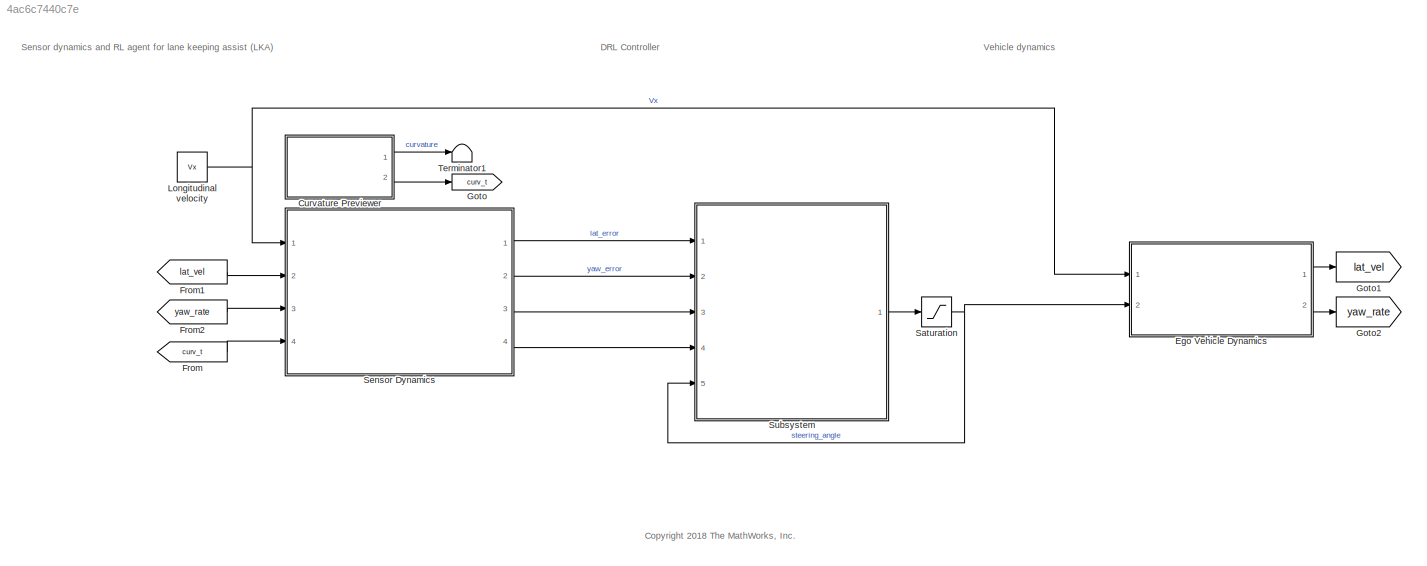
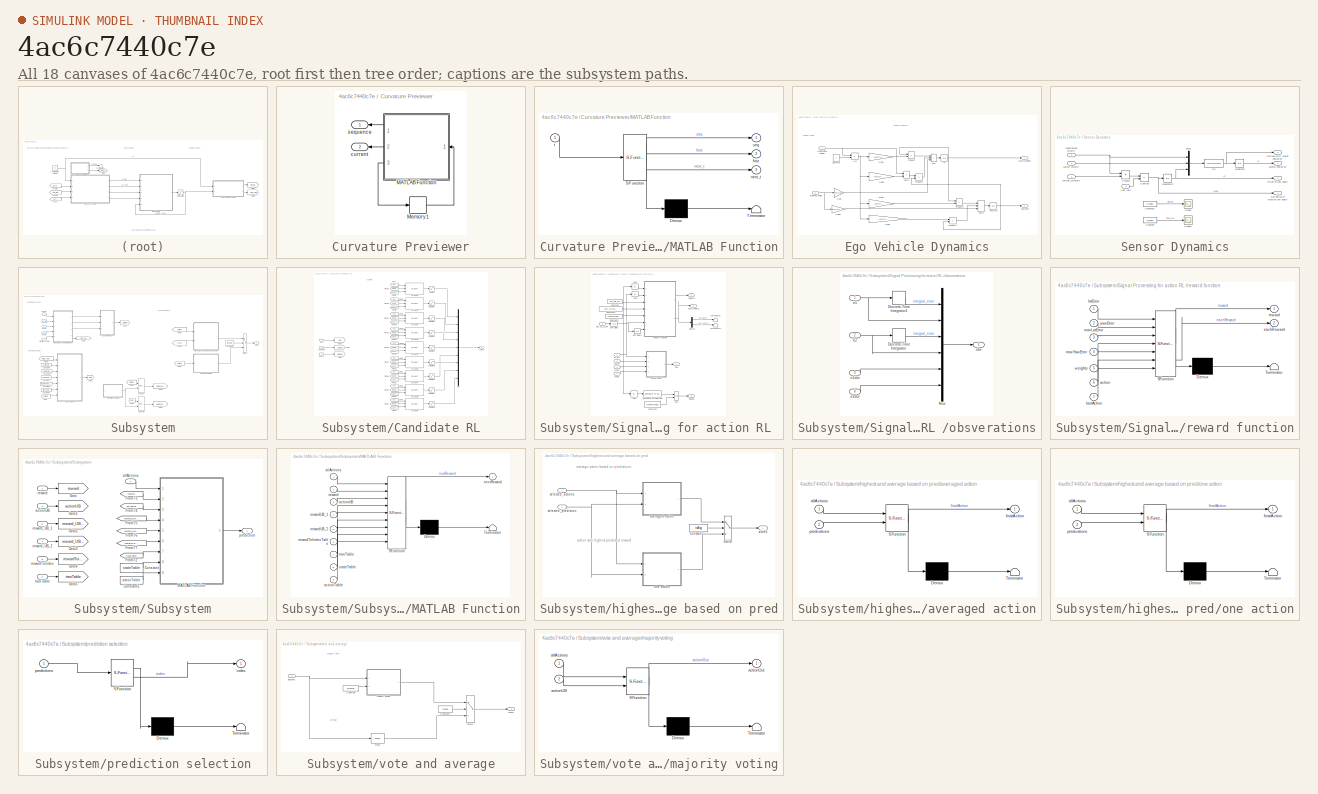
[diagram: thumbnail index - all 18 canvases of the model, root first then tree order]
MODEL slx_4ac6c7440c7e
KIND model
CONFIG AbsTol = auto
CONFIG EnableMultiTasking = off
CONFIG FixedStep = Ts
CONFIG MaxStep = auto
CONFIG MinStep = auto
CONFIG RelTol = 1e-3
CONFIG SampleTimeConstraint = Unconstrained
CONFIG SolverName = FixedStepAuto
CONFIG StartTime = 0.0
CONFIG StopTime = T
BLOCK [SubSystem] Curvature Previewer
  Ports = [0, 2]
  RequestExecContextInheritance = off
BLOCK [SubSystem] Curvature Previewer/MATLAB Function
  ErrorFcn = Stateflow.Translate.translate
  PermitHierarchicalResolution = ExplicitOnly
  Ports = [1, 3]
  RequestExecContextInheritance = off
  SFBlockType = MATLAB Function
  TreatAsAtomicUnit = on
BLOCK [Demux] Curvature Previewer/MATLAB Function/ Demux 
  Outputs = 1
  Ports = [1, 1]
BLOCK [S-Function] Curvature Previewer/MATLAB Function/ SFunction 
  EnableBusSupport = on
  FunctionName = sf_sfun
  Parameters = data,steps
  PortCounts = [1 4]
  Ports = [1, 4]
  SFcnIsStateOwnerBlock = off
  SFunctionDeploymentMode = off
  Tag = Stateflow S-Function 2
BLOCK [Terminator] Curvature Previewer/MATLAB Function/ Terminator 
BLOCK [Outport] Curvature Previewer/MATLAB Function/first
  Port = 2
  VectorParamsAs1DForOutWhenUnconnected = off
BLOCK [Outport] Curvature Previewer/MATLAB Function/next_t
  Port = 3
  VectorParamsAs1DForOutWhenUnconnected = off
BLOCK [Outport] Curvature Previewer/MATLAB Function/seq
  VectorParamsAs1DForOutWhenUnconnected = off
BLOCK [Inport] Curvature Previewer/MATLAB Function/t
BLOCK [Memory] Curvature Previewer/Memory1
  InheritSampleTime = on
  LinearizeAsDelay = on
BLOCK [Outport] Curvature Previewer/current
  Port = 2
  VectorParamsAs1DForOutWhenUnconnected = off
BLOCK [Outport] Curvature Previewer/sequence
  VectorParamsAs1DForOutWhenUnconnected = off
BLOCK [SubSystem] Ego Vehicle Dynamics
  Ports = [2, 2]
  RequestExecContextInheritance = off
BLOCK [Product] Ego Vehicle Dynamics/1//Vx
  Inputs = /*
  Ports = [2, 1]
BLOCK [Constant] Ego Vehicle Dynamics/Constant
BLOCK [Gain] Ego Vehicle Dynamics/Gain
  Gain = 2*Cf/m
BLOCK [Gain] Ego Vehicle Dynamics/Gain1
  Gain = -(2*Cf+2*Cr)/m
BLOCK [Gain] Ego Vehicle Dynamics/Gain2
  Gain = -(2*Cf*lf-2*Cr*lr)/m
BLOCK [Gain] Ego Vehicle Dynamics/Gain3
  Gain = -(2*Cf*lf-2*Cr*lr)/Iz
BLOCK [Gain] Ego Vehicle Dynamics/Gain4
  Gain = -(2*Cf*lf^2+2*Cr*lr^2)/Iz
BLOCK [Gain] Ego Vehicle Dynamics/Gain5
  Gain = 2*Cf*lf/Iz
BLOCK [Outport] Ego Vehicle Dynamics/Lateral Velocity
  VectorParamsAs1DForOutWhenUnconnected = off
BLOCK [Inport] Ego Vehicle Dynamics/Longitudinal velocity
BLOCK [Product] Ego Vehicle Dynamics/Product
  Ports = [2, 1]
BLOCK [Product] Ego Vehicle Dynamics/Product1
  Ports = [2, 1]
BLOCK [Product] Ego Vehicle Dynamics/Product2
  Ports = [2, 1]
BLOCK [Product] Ego Vehicle Dynamics/Product3
  Ports = [2, 1]
BLOCK [Inport] Ego Vehicle Dynamics/Steering angle
  Port = 2
BLOCK [Sum] Ego Vehicle Dynamics/Sum
  IconShape = rectangular
  Inputs = +++
  Ports = [3, 1]
BLOCK [Sum] Ego Vehicle Dynamics/Sum1
  IconShape = rectangular
  Inputs = -+
  Ports = [2, 1]
BLOCK [Sum] Ego Vehicle Dynamics/Sum2
  IconShape = rectangular
  Inputs = +++
  Ports = [3, 1]
BLOCK [Integrator] Ego Vehicle Dynamics/Vy
  Ports = [1, 1]
BLOCK [Outport] Ego Vehicle Dynamics/Yaw Rate
  Port = 2
  VectorParamsAs1DForOutWhenUnconnected = off
BLOCK [Integrator] Ego Vehicle Dynamics/Yaw_rate 
  Ports = [1, 1]
BLOCK [From] From
  GotoTag = curv_t
BLOCK [From] From1
  GotoTag = lat_vel
BLOCK [From] From2
  GotoTag = yaw_rate
BLOCK [Goto] Goto
  GotoTag = curv_t
BLOCK [Goto] Goto1
  GotoTag = lat_vel
BLOCK [Goto] Goto2
  GotoTag = yaw_rate
BLOCK [Constant] Longitudinal velocity
  SampleTime = Ts
  Value = Vx
BLOCK [Saturate] Saturation
  LowerLimit = u_min
  UpperLimit = u_max
BLOCK [SubSystem] Sensor Dynamics
  Ports = [4, 4]
  RequestExecContextInheritance = off
BLOCK [Constant] Sensor Dynamics/Constant
  Commented = on
  Value = e2_initial
BLOCK [Constant] Sensor Dynamics/Constant1
  Commented = on
  Value = e1_initial
BLOCK [Outport] Sensor Dynamics/Derivative of lateral deviation
  Port = 3
  VectorParamsAs1DForOutWhenUnconnected = off
BLOCK [Outport] Sensor Dynamics/Derivative of relative yaw angle
  Port = 4
  VectorParamsAs1DForOutWhenUnconnected = off
BLOCK [Integrator] Sensor Dynamics/Integrator
  InitialCondition = e1_initial
  Ports = [1, 1]
BLOCK [Integrator] Sensor Dynamics/Integrator2
  InitialCondition = e2_initial
  Ports = [1, 1]
BLOCK [Outport] Sensor Dynamics/Lateral deviation
  VectorParamsAs1DForOutWhenUnconnected = off
BLOCK [Inport] Sensor Dynamics/Lateral velocity
  Port = 2
BLOCK [Inport] Sensor Dynamics/Longitudinal velocity
BLOCK [Mux] Sensor Dynamics/Mux1
  DisplayOption = bar
  Inputs = [1 1 1]
  Ports = [3, 1]
BLOCK [Product] Sensor Dynamics/Product
  Ports = [2, 1]
BLOCK [Outport] Sensor Dynamics/Relative yaw angle
  Port = 2
  VectorParamsAs1DForOutWhenUnconnected = off
BLOCK [Scope] Sensor Dynamics/Scope
  Commented = on
  Floating = off
  NumInputPorts = 1
  Ports = [1]
  ScopeSpecificationString = Simulink.scopes.TimeScopeBlockCfg('CurrentConfiguration', extmgr.ConfigurationSet(extmgr.Configuration('Core','General UI',true),extmgr.Configuration('Core','Source UI',true),extmgr.Configuration('Sources','WiredSimulink',true),extmgr.Configuration('Visuals','Time Domain',true),extmgr.Configuration('Tools','Plot Navigation',true),extmgr.Configuration('Tools','Measurements',true)),'Version','2021a'...<+1ch>
BLOCK [Scope] Sensor Dynamics/Scope1
  Commented = on
  Floating = off
  NumInputPorts = 1
  Ports = [1]
  ScopeSpecificationString = Simulink.scopes.TimeScopeBlockCfg('CurrentConfiguration', extmgr.ConfigurationSet(extmgr.Configuration('Core','General UI',true),extmgr.Configuration('Core','Source UI',true),extmgr.Configuration('Sources','WiredSimulink',true,'DataLoggingVariableName','ScopeData1'),extmgr.Configuration('Visuals','Time Domain',true),extmgr.Configuration('Tools','Plot Navigation',true),extmgr.Configuration('Tools',...<+40ch>
BLOCK [Sum] Sensor Dynamics/Subtract
  IconShape = rectangular
  Inputs = -+
  Ports = [2, 1]
BLOCK [Inport] Sensor Dynamics/Yaw rate
  Port = 3
BLOCK [Inport] Sensor Dynamics/current_curvature
  Port = 4
BLOCK [Fcn] Sensor Dynamics/fcn
  Expr = u(1)*u(3)+u(2)
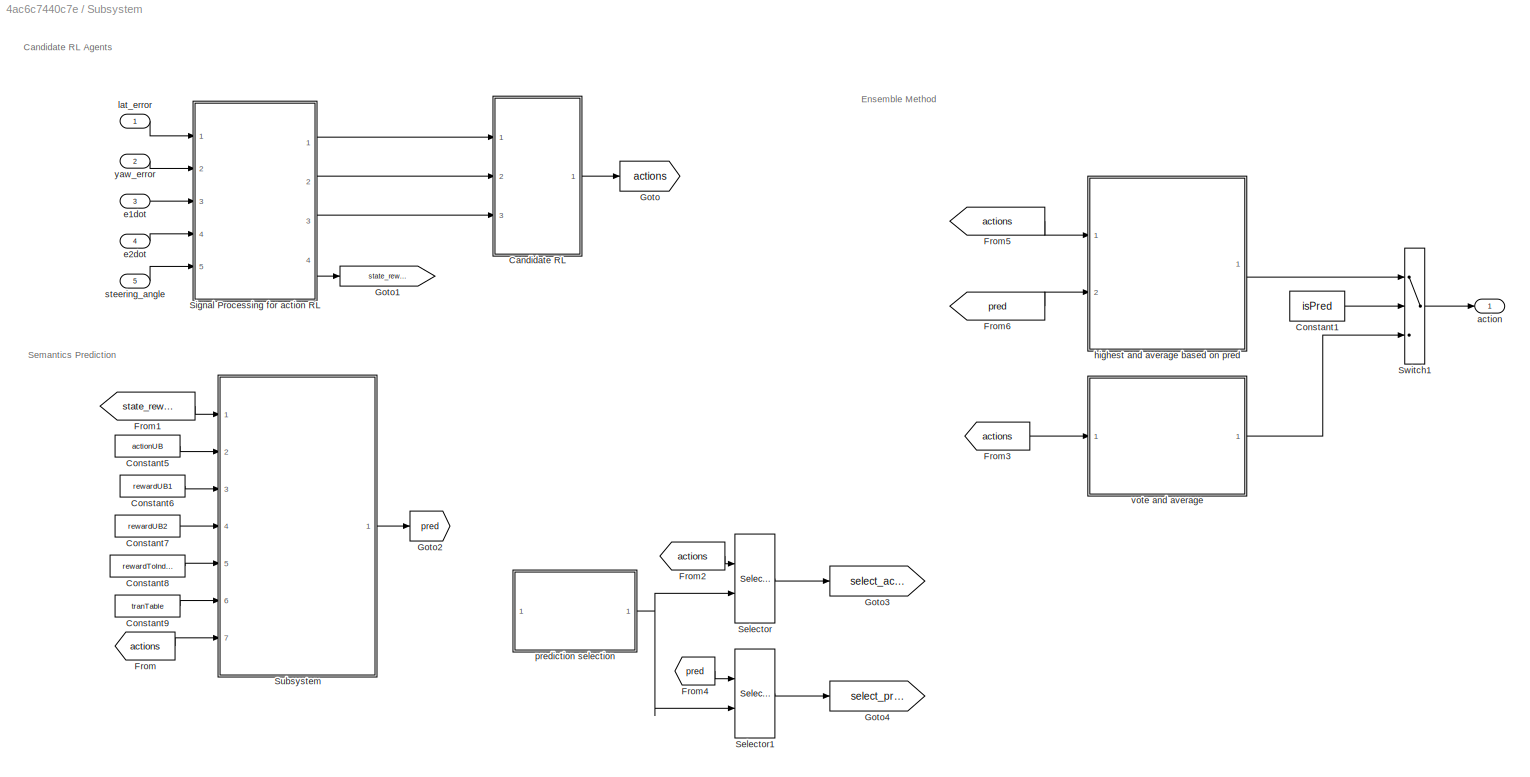
BLOCK [SubSystem] Subsystem
  Ports = [5, 1]
  RequestExecContextInheritance = off
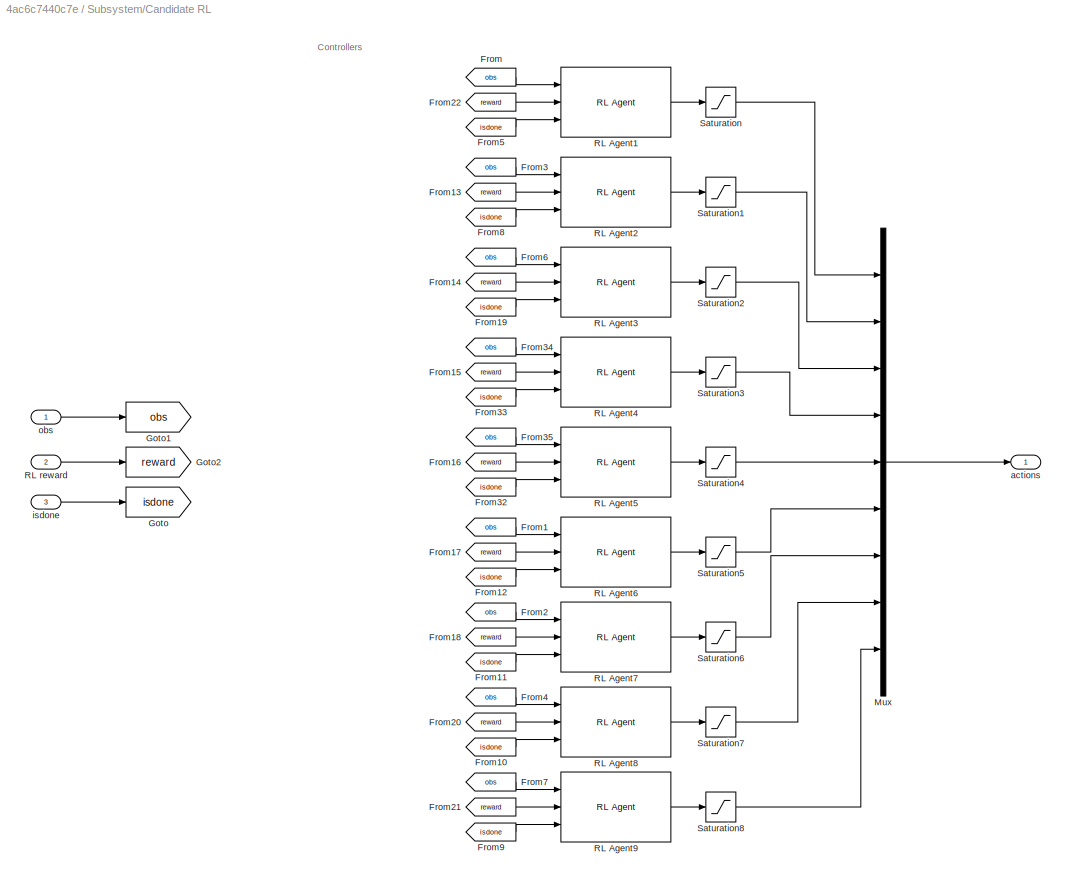
BLOCK [SubSystem] Subsystem/Candidate RL
  Ports = [3, 1]
  RequestExecContextInheritance = off
BLOCK [From] Subsystem/Candidate RL/From
  GotoTag = obs
BLOCK [From] Subsystem/Candidate RL/From1
  GotoTag = obs
BLOCK [From] Subsystem/Candidate RL/From10
  GotoTag = isdone
BLOCK [From] Subsystem/Candidate RL/From11
  GotoTag = isdone
BLOCK [From] Subsystem/Candidate RL/From12
  GotoTag = isdone
BLOCK [From] Subsystem/Candidate RL/From13
  GotoTag = reward
BLOCK [From] Subsystem/Candidate RL/From14
  GotoTag = reward
BLOCK [From] Subsystem/Candidate RL/From15
  GotoTag = reward
BLOCK [From] Subsystem/Candidate RL/From16
  GotoTag = reward
BLOCK [From] Subsystem/Candidate RL/From17
  GotoTag = reward
BLOCK [From] Subsystem/Candidate RL/From18
  GotoTag = reward
BLOCK [From] Subsystem/Candidate RL/From19
  GotoTag = isdone
BLOCK [From] Subsystem/Candidate RL/From2
  GotoTag = obs
BLOCK [From] Subsystem/Candidate RL/From20
  GotoTag = reward
BLOCK [From] Subsystem/Candidate RL/From21
  GotoTag = reward
BLOCK [From] Subsystem/Candidate RL/From22
  GotoTag = reward
BLOCK [From] Subsystem/Candidate RL/From3
  GotoTag = obs
BLOCK [From] Subsystem/Candidate RL/From32
  GotoTag = isdone
BLOCK [From] Subsystem/Candidate RL/From33
  GotoTag = isdone
BLOCK [From] Subsystem/Candidate RL/From34
  GotoTag = obs
BLOCK [From] Subsystem/Candidate RL/From35
  GotoTag = obs
BLOCK [From] Subsystem/Candidate RL/From4
  GotoTag = obs
BLOCK [From] Subsystem/Candidate RL/From5
  GotoTag = isdone
BLOCK [From] Subsystem/Candidate RL/From6
  GotoTag = obs
BLOCK [From] Subsystem/Candidate RL/From7
  GotoTag = obs
BLOCK [From] Subsystem/Candidate RL/From8
  GotoTag = isdone
BLOCK [From] Subsystem/Candidate RL/From9
  GotoTag = isdone
BLOCK [Goto] Subsystem/Candidate RL/Goto
  GotoTag = isdone
BLOCK [Goto] Subsystem/Candidate RL/Goto1
  GotoTag = obs
BLOCK [Goto] Subsystem/Candidate RL/Goto2
  GotoTag = reward
BLOCK [Mux] Subsystem/Candidate RL/Mux
  DisplayOption = bar
  Inputs = 9
  Ports = [9, 1]
BLOCK [Reference] Subsystem/Candidate RL/RL Agent1  REF=rllib/RL Agent
  Ports = [3, 1]
  SourceBlock = rllib/RL Agent
  SourceProductBaseCode = RL
  SourceType = RL Agent
BLOCK [Reference] Subsystem/Candidate RL/RL Agent2  REF=rllib/RL Agent
  Ports = [3, 1]
  SourceBlock = rllib/RL Agent
  SourceProductBaseCode = RL
  SourceType = RL Agent
BLOCK [Reference] Subsystem/Candidate RL/RL Agent3  REF=rllib/RL Agent
  Ports = [3, 1]
  SourceBlock = rllib/RL Agent
  SourceProductBaseCode = RL
  SourceType = RL Agent
BLOCK [Reference] Subsystem/Candidate RL/RL Agent4  REF=rllib/RL Agent
  Ports = [3, 1]
  SourceBlock = rllib/RL Agent
  SourceProductBaseCode = RL
  SourceType = RL Agent
BLOCK [Reference] Subsystem/Candidate RL/RL Agent5  REF=rllib/RL Agent
  Ports = [3, 1]
  SourceBlock = rllib/RL Agent
  SourceProductBaseCode = RL
  SourceType = RL Agent
BLOCK [Reference] Subsystem/Candidate RL/RL Agent6  REF=rllib/RL Agent
  Ports = [3, 1]
  SourceBlock = rllib/RL Agent
  SourceProductBaseCode = RL
  SourceType = RL Agent
BLOCK [Reference] Subsystem/Candidate RL/RL Agent7  REF=rllib/RL Agent
  Ports = [3, 1]
  SourceBlock = rllib/RL Agent
  SourceProductBaseCode = RL
  SourceType = RL Agent
BLOCK [Reference] Subsystem/Candidate RL/RL Agent8  REF=rllib/RL Agent
  Ports = [3, 1]
  SourceBlock = rllib/RL Agent
  SourceProductBaseCode = RL
  SourceType = RL Agent
BLOCK [Reference] Subsystem/Candidate RL/RL Agent9  REF=rllib/RL Agent
  Ports = [3, 1]
  SourceBlock = rllib/RL Agent
  SourceProductBaseCode = RL
  SourceType = RL Agent
BLOCK [Inport] Subsystem/Candidate RL/RL reward
  Port = 2
BLOCK [Saturate] Subsystem/Candidate RL/Saturation
  LowerLimit = u_min
  UpperLimit = u_max
BLOCK [Saturate] Subsystem/Candidate RL/Saturation1
  LowerLimit = u_min
  UpperLimit = u_max
BLOCK [Saturate] Subsystem/Candidate RL/Saturation2
  LowerLimit = u_min
  UpperLimit = u_max
BLOCK [Saturate] Subsystem/Candidate RL/Saturation3
  LowerLimit = u_min
  UpperLimit = u_max
BLOCK [Saturate] Subsystem/Candidate RL/Saturation4
  LowerLimit = u_min
  UpperLimit = u_max
BLOCK [Saturate] Subsystem/Candidate RL/Saturation5
  LowerLimit = u_min
  UpperLimit = u_max
BLOCK [Saturate] Subsystem/Candidate RL/Saturation6
  LowerLimit = u_min
  UpperLimit = u_max
BLOCK [Saturate] Subsystem/Candidate RL/Saturation7
  LowerLimit = u_min
  UpperLimit = u_max
BLOCK [Saturate] Subsystem/Candidate RL/Saturation8
  LowerLimit = u_min
  UpperLimit = u_max
BLOCK [Outport] Subsystem/Candidate RL/actions
BLOCK [Inport] Subsystem/Candidate RL/isdone
  Port = 3
BLOCK [Inport] Subsystem/Candidate RL/obs
BLOCK [Constant] Subsystem/Constant1
  Value = isPred
BLOCK [Constant] Subsystem/Constant5
  Value = actionUB
BLOCK [Constant] Subsystem/Constant6
  Value = rewardUB1
BLOCK [Constant] Subsystem/Constant7
  Value = rewardUB2
BLOCK [Constant] Subsystem/Constant8
  Value = rewardToIndex
BLOCK [Constant] Subsystem/Constant9
  Value = tranTable
BLOCK [From] Subsystem/From
  GotoTag = actions
BLOCK [From] Subsystem/From1
  GotoTag = state_reward
BLOCK [From] Subsystem/From2
  Commented = on
  GotoTag = actions
BLOCK [From] Subsystem/From3
  GotoTag = actions
BLOCK [From] Subsystem/From4
  Commented = on
  GotoTag = pred
BLOCK [From] Subsystem/From5
  GotoTag = actions
BLOCK [From] Subsystem/From6
  GotoTag = pred
BLOCK [Goto] Subsystem/Goto
  GotoTag = actions
BLOCK [Goto] Subsystem/Goto1
  GotoTag = state_reward
BLOCK [Goto] Subsystem/Goto2
  GotoTag = pred
BLOCK [Goto] Subsystem/Goto3
  Commented = on
  GotoTag = select_action
BLOCK [Goto] Subsystem/Goto4
  Commented = on
  GotoTag = select_pred
BLOCK [Selector] Subsystem/Selector
  Commented = on
  IndexOptions = Index vector (port)
  Indices = [1 3]
  InputPortWidth = 3
  OutputSizes = 1
  Ports = [2, 1]
BLOCK [Selector] Subsystem/Selector1
  Commented = on
  IndexOptions = Index vector (port)
  Indices = [1 3]
  InputPortWidth = 3
  OutputSizes = 1
  Ports = [2, 1]
BLOCK [SubSystem] Subsystem/Signal Processing for action RL 
  Ports = [5, 4]
  RequestExecContextInheritance = off
BLOCK [Logic] Subsystem/Signal Processing for action RL /AND
  AllPortsSameDT = off
  IconShape = distinctive
  OutDataTypeStr = boolean
  Ports = [2, 1]
BLOCK [Abs] Subsystem/Signal Processing for action RL /Abs
  SaturateOnIntegerOverflow = off
BLOCK [Abs] Subsystem/Signal Processing for action RL /Abs1
  SaturateOnIntegerOverflow = off
BLOCK [Abs] Subsystem/Signal Processing for action RL /Abs2
  SaturateOnIntegerOverflow = off
BLOCK [Reference] Subsystem/Signal Processing for action RL /Compare To Constant  REF=simulink/Logic and Bit
Operations/Compare
To Constant
  Ports = [1, 1]
  SourceBlock = simulink/Logic and Bit\nOperations/Compare\nTo Constant
  SourceProductBaseCode = SL
  SourceType = Compare To Constant
BLOCK [Constant] Subsystem/Signal Processing for action RL /Constant
  Value = max_late_dev
BLOCK [Constant] Subsystem/Signal Processing for action RL /Constant1
  Value = isTerminate
BLOCK [Constant] Subsystem/Signal Processing for action RL /Constant2
  Value = max_rel_yaw_ang
BLOCK [Constant] Subsystem/Signal Processing for action RL /Constant3
  Value = rewardWeights
BLOCK [Demux] Subsystem/Signal Processing for action RL /Demux
  Outputs = 2
  Ports = [1, 2]
BLOCK [Outport] Subsystem/Signal Processing for action RL /Reward
  Port = 2
  VectorParamsAs1DForOutWhenUnconnected = off
BLOCK [Terminator] Subsystem/Signal Processing for action RL /Terminator
BLOCK [Terminator] Subsystem/Signal Processing for action RL /Terminator1
BLOCK [UnitDelay] Subsystem/Signal Processing for action RL /Unit Delay
  HasFrameUpgradeWarning = on
  SampleTime = -1
BLOCK [UnitDelay] Subsystem/Signal Processing for action RL /Unit Delay1
  HasFrameUpgradeWarning = on
  SampleTime = -1
BLOCK [Inport] Subsystem/Signal Processing for action RL /e1dot 
  Port = 3
BLOCK [Inport] Subsystem/Signal Processing for action RL /e2dot
  Port = 4
BLOCK [Outport] Subsystem/Signal Processing for action RL /each_reward
  Port = 4
BLOCK [Outport] Subsystem/Signal Processing for action RL /isDone
  Port = 3
  VectorParamsAs1DForOutWhenUnconnected = off
BLOCK [Inport] Subsystem/Signal Processing for action RL /last_RL_steer
  Port = 5
BLOCK [Inport] Subsystem/Signal Processing for action RL /lat_err
BLOCK [Outport] Subsystem/Signal Processing for action RL /obs
  VectorParamsAs1DForOutWhenUnconnected = off
BLOCK [SubSystem] Subsystem/Signal Processing for action RL /obsverations
  Ports = [4, 1]
  RequestExecContextInheritance = off
BLOCK [DiscreteIntegrator] Subsystem/Signal Processing for action RL /obsverations/Discrete-Time Integrator
  ICPrevOutput = DiscIntNeverNeededParam
  ICPrevScaledInput = DiscIntNeverNeededParam
  InitialConditionSetting = Auto
  Ports = [1, 1]
  SampleTime = -1
BLOCK [DiscreteIntegrator] Subsystem/Signal Processing for action RL /obsverations/Discrete-Time Integrator1
  ICPrevOutput = DiscIntNeverNeededParam
  ICPrevScaledInput = DiscIntNeverNeededParam
  InitialConditionSetting = Auto
  Ports = [1, 1]
  SampleTime = -1
BLOCK [Mux] Subsystem/Signal Processing for action RL /obsverations/Mux
  DisplayOption = bar
  Inputs = 6
  Ports = [6, 1]
BLOCK [Inport] Subsystem/Signal Processing for action RL /obsverations/e1
BLOCK [Inport] Subsystem/Signal Processing for action RL /obsverations/e1dot
  Port = 3
BLOCK [Inport] Subsystem/Signal Processing for action RL /obsverations/e2
  Port = 2
BLOCK [Inport] Subsystem/Signal Processing for action RL /obsverations/e2dot
  Port = 4
BLOCK [Outport] Subsystem/Signal Processing for action RL /obsverations/obs
  VectorParamsAs1DForOutWhenUnconnected = off
BLOCK [SubSystem] Subsystem/Signal Processing for action RL /reward function
  ErrorFcn = Stateflow.Translate.translate
  PermitHierarchicalResolution = ExplicitOnly
  Ports = [7, 2]
  RequestExecContextInheritance = off
  SFBlockType = MATLAB Function
  TreatAsAtomicUnit = on
BLOCK [Demux] Subsystem/Signal Processing for action RL /reward function/ Demux 
  Outputs = 1
  Ports = [1, 1]
BLOCK [S-Function] Subsystem/Signal Processing for action RL /reward function/ SFunction 
  EnableBusSupport = on
  FunctionName = sf_sfun
  PortCounts = [7 3]
  Ports = [7, 3]
  SFcnIsStateOwnerBlock = off
  SFunctionDeploymentMode = off
  Tag = Stateflow S-Function 1
BLOCK [Terminator] Subsystem/Signal Processing for action RL /reward function/ Terminator 
BLOCK [Inport] Subsystem/Signal Processing for action RL /reward function/action
  Port = 6
BLOCK [Outport] Subsystem/Signal Processing for action RL /reward function/eachReward
  Port = 2
BLOCK [Inport] Subsystem/Signal Processing for action RL /reward function/lastAction
  Port = 7
BLOCK [Inport] Subsystem/Signal Processing for action RL /reward function/latError
BLOCK [Inport] Subsystem/Signal Processing for action RL /reward function/maxLatError
  Port = 3
BLOCK [Inport] Subsystem/Signal Processing for action RL /reward function/maxYawError
  Port = 4
BLOCK [Outport] Subsystem/Signal Processing for action RL /reward function/reward
BLOCK [Inport] Subsystem/Signal Processing for action RL /reward function/weights
  Port = 5
BLOCK [Inport] Subsystem/Signal Processing for action RL /reward function/yawError
  Port = 2
BLOCK [Inport] Subsystem/Signal Processing for action RL /yaw_err
  Port = 2
BLOCK [SubSystem] Subsystem/Subsystem
  Ports = [7, 1]
  RequestExecContextInheritance = off
BLOCK [Constant] Subsystem/Subsystem/Constant
  Value = stateTable
BLOCK [Constant] Subsystem/Subsystem/Constant1
  Value = actionTable
BLOCK [From] Subsystem/Subsystem/From72
  GotoTag = tranTable
BLOCK [From] Subsystem/Subsystem/From73
  GotoTag = reward
BLOCK [From] Subsystem/Subsystem/From74
  GotoTag = actionUB
BLOCK [From] Subsystem/Subsystem/From75
  GotoTag = reward_UB_1
BLOCK [From] Subsystem/Subsystem/From76
  GotoTag = reward_UB_2
BLOCK [From] Subsystem/Subsystem/From77
  GotoTag = rewardToindex
BLOCK [Goto] Subsystem/Subsystem/Goto
  GotoTag = reward
BLOCK [Goto] Subsystem/Subsystem/Goto1
  GotoTag = actionUB
BLOCK [Goto] Subsystem/Subsystem/Goto2
  GotoTag = reward_UB_1
BLOCK [Goto] Subsystem/Subsystem/Goto3
  GotoTag = reward_UB_2
BLOCK [Goto] Subsystem/Subsystem/Goto4
  GotoTag = rewardToindex
BLOCK [Goto] Subsystem/Subsystem/Goto5
  GotoTag = tranTable
BLOCK [SubSystem] Subsystem/Subsystem/MATLAB Function
  ErrorFcn = Stateflow.Translate.translate
  PermitHierarchicalResolution = ExplicitOnly
  Ports = [9, 1]
  RequestExecContextInheritance = off
  SFBlockType = MATLAB Function
  TreatAsAtomicUnit = on
BLOCK [Demux] Subsystem/Subsystem/MATLAB Function/ Demux 
  Outputs = 1
  Ports = [1, 1]
BLOCK [S-Function] Subsystem/Subsystem/MATLAB Function/ SFunction 
  EnableBusSupport = on
  FunctionName = sf_sfun
  PortCounts = [9 2]
  Ports = [9, 2]
  SFcnIsStateOwnerBlock = off
  SFunctionDeploymentMode = off
  Tag = Stateflow S-Function 3
BLOCK [Terminator] Subsystem/Subsystem/MATLAB Function/ Terminator 
BLOCK [Inport] Subsystem/Subsystem/MATLAB Function/actionTable
  Port = 9
BLOCK [Inport] Subsystem/Subsystem/MATLAB Function/actionUB
  Port = 3
BLOCK [Inport] Subsystem/Subsystem/MATLAB Function/allActions
BLOCK [Outport] Subsystem/Subsystem/MATLAB Function/nextReward
BLOCK [Inport] Subsystem/Subsystem/MATLAB Function/reward
  Port = 2
BLOCK [Inport] Subsystem/Subsystem/MATLAB Function/rewardToIndexTable
  Port = 6
BLOCK [Inport] Subsystem/Subsystem/MATLAB Function/rewardUB_1
  Port = 4
BLOCK [Inport] Subsystem/Subsystem/MATLAB Function/rewardUB_2
  Port = 5
BLOCK [Inport] Subsystem/Subsystem/MATLAB Function/stateTable
  Port = 8
BLOCK [Inport] Subsystem/Subsystem/MATLAB Function/tranTable
  Port = 7
BLOCK [Inport] Subsystem/Subsystem/actionUB
  Port = 2
BLOCK [Inport] Subsystem/Subsystem/allActions
  Port = 7
BLOCK [Outport] Subsystem/Subsystem/prediction
BLOCK [Inport] Subsystem/Subsystem/reward
BLOCK [Inport] Subsystem/Subsystem/rewardToindex
  Port = 5
BLOCK [Inport] Subsystem/Subsystem/reward_UB_1
  Port = 3
BLOCK [Inport] Subsystem/Subsystem/reward_UB_2
  Port = 4
BLOCK [Inport] Subsystem/Subsystem/tranTable
  Port = 6
BLOCK [Switch] Subsystem/Switch1
  Criteria = u2 > Threshold
  InputSameDT = off
  SaturateOnIntegerOverflow = off
BLOCK [Outport] Subsystem/action
BLOCK [Inport] Subsystem/e1dot 
  Port = 3
BLOCK [Inport] Subsystem/e2dot
  Port = 4
BLOCK [SubSystem] Subsystem/highest and average based on pred
  Ports = [2, 1]
  RequestExecContextInheritance = off
BLOCK [Constant] Subsystem/highest and average based on pred/Constant
  Value = isAvg
BLOCK [Switch] Subsystem/highest and average based on pred/Switch
  Criteria = u2 > Threshold
  InputSameDT = off
  SaturateOnIntegerOverflow = off
BLOCK [Outport] Subsystem/highest and average based on pred/action
BLOCK [SubSystem] Subsystem/highest and average based on pred/averaged action
  ErrorFcn = Stateflow.Translate.translate
  PermitHierarchicalResolution = ExplicitOnly
  Ports = [2, 1]
  RequestExecContextInheritance = off
  SFBlockType = MATLAB Function
  TreatAsAtomicUnit = on
BLOCK [Demux] Subsystem/highest and average based on pred/averaged action/ Demux 
  Outputs = 1
  Ports = [1, 1]
BLOCK [S-Function] Subsystem/highest and average based on pred/averaged action/ SFunction 
  EnableBusSupport = on
  FunctionName = sf_sfun
  PortCounts = [2 2]
  Ports = [2, 2]
  SFcnIsStateOwnerBlock = off
  SFunctionDeploymentMode = off
  Tag = Stateflow S-Function 14
BLOCK [Terminator] Subsystem/highest and average based on pred/averaged action/ Terminator 
BLOCK [Inport] Subsystem/highest and average based on pred/averaged action/allActions
BLOCK [Outport] Subsystem/highest and average based on pred/averaged action/finalAction
BLOCK [Inport] Subsystem/highest and average based on pred/averaged action/predications
  Port = 2
BLOCK [SubSystem] Subsystem/highest and average based on pred/one action
  ErrorFcn = Stateflow.Translate.translate
  PermitHierarchicalResolution = ExplicitOnly
  Ports = [2, 1]
  RequestExecContextInheritance = off
  SFBlockType = MATLAB Function
  TreatAsAtomicUnit = on
BLOCK [Demux] Subsystem/highest and average based on pred/one action/ Demux 
  Outputs = 1
  Ports = [1, 1]
BLOCK [S-Function] Subsystem/highest and average based on pred/one action/ SFunction 
  EnableBusSupport = on
  FunctionName = sf_sfun
  PortCounts = [2 2]
  Ports = [2, 2]
  SFcnIsStateOwnerBlock = off
  SFunctionDeploymentMode = off
  Tag = Stateflow S-Function 15
BLOCK [Terminator] Subsystem/highest and average based on pred/one action/ Terminator 
BLOCK [Inport] Subsystem/highest and average based on pred/one action/allActions
BLOCK [Outport] Subsystem/highest and average based on pred/one action/finalAction
BLOCK [Inport] Subsystem/highest and average based on pred/one action/predications
  Port = 2
BLOCK [Inport] Subsystem/highest and average based on pred/selected_actions
BLOCK [Inport] Subsystem/highest and average based on pred/selected_prediction
  Port = 2
BLOCK [Inport] Subsystem/lat_error
BLOCK [SubSystem] Subsystem/prediction selection
  Commented = on
  ErrorFcn = Stateflow.Translate.translate
  PermitHierarchicalResolution = ExplicitOnly
  Ports = [1, 1]
  RequestExecContextInheritance = off
  SFBlockType = MATLAB Function
  TreatAsAtomicUnit = on
BLOCK [Demux] Subsystem/prediction selection/ Demux 
  Outputs = 1
  Ports = [1, 1]
BLOCK [S-Function] Subsystem/prediction selection/ SFunction 
  EnableBusSupport = on
  FunctionName = sf_sfun
  PortCounts = [1 2]
  Ports = [1, 2]
  SFcnIsStateOwnerBlock = off
  SFunctionDeploymentMode = off
  Tag = Stateflow S-Function 12
BLOCK [Terminator] Subsystem/prediction selection/ Terminator 
BLOCK [Outport] Subsystem/prediction selection/index
BLOCK [Inport] Subsystem/prediction selection/predictions
BLOCK [Inport] Subsystem/steering_angle
  Port = 5
BLOCK [SubSystem] Subsystem/vote and average
  Ports = [1, 1]
  RequestExecContextInheritance = off
BLOCK [Constant] Subsystem/vote and average/Constant
  Value = actionUB
BLOCK [Constant] Subsystem/vote and average/Constant1
  Value = isVote
BLOCK [Reference] Subsystem/vote and average/Mean  REF=dspstat3/Mean
  Ports = [1, 1]
  SourceBlock = dspstat3/Mean
  SourceProductBaseCode = DS
  SourceType = Mean
  UserDataPersistent = on
BLOCK [Switch] Subsystem/vote and average/Switch
  Criteria = u2 > Threshold
  InputSameDT = off
  SaturateOnIntegerOverflow = off
BLOCK [Outport] Subsystem/vote and average/action
BLOCK [Inport] Subsystem/vote and average/allActions
BLOCK [SubSystem] Subsystem/vote and average/majority voting
  ErrorFcn = Stateflow.Translate.translate
  PermitHierarchicalResolution = ExplicitOnly
  Ports = [2, 1]
  RequestExecContextInheritance = off
  SFBlockType = MATLAB Function
  TreatAsAtomicUnit = on
BLOCK [Demux] Subsystem/vote and average/majority voting/ Demux 
  Outputs = 1
  Ports = [1, 1]
BLOCK [S-Function] Subsystem/vote and average/majority voting/ SFunction 
  EnableBusSupport = on
  FunctionName = sf_sfun
  PortCounts = [2 2]
  Ports = [2, 2]
  SFcnIsStateOwnerBlock = off
  SFunctionDeploymentMode = off
  Tag = Stateflow S-Function 13
BLOCK [Terminator] Subsystem/vote and average/majority voting/ Terminator 
BLOCK [Outport] Subsystem/vote and average/majority voting/actionOut
BLOCK [Inport] Subsystem/vote and average/majority voting/actionUB
  Port = 2
BLOCK [Inport] Subsystem/vote and average/majority voting/allActions
BLOCK [Inport] Subsystem/yaw_error
  Port = 2
BLOCK [Terminator] Terminator1
ANNOTATION (root): <copyright redacted>
ANNOTATION (root): DRL Controller
ANNOTATION (root): Sensor dynamics and RL agent for lane keeping assist (LKA)
ANNOTATION (root): Vehicle dynamics
ANNOTATION Ego Vehicle Dynamics: Vehicle Dynamics
ANNOTATION Ego Vehicle Dynamics: Vehicle Model
ANNOTATION Subsystem: Candidate RL Agents
ANNOTATION Subsystem: Ensemble Method
ANNOTATION Subsystem: Semantics Prediction
ANNOTATION Subsystem/Candidate RL: Controllers
ANNOTATION Subsystem/highest and average based on pred: action with highest predicted reward
ANNOTATION Subsystem/highest and average based on pred: average action based on predictions
ANNOTATION Subsystem/vote and average: Average
ANNOTATION Subsystem/vote and average: Majority Vote
LINE Curvature Previewer/MATLAB Function:1 -> Curvature Previewer/sequence:1
LINE Curvature Previewer/MATLAB Function:2 -> Curvature Previewer/current:1
LINE Curvature Previewer/MATLAB Function:3 -> Curvature Previewer/Memory1:1
LINE Curvature Previewer/Memory1:1 -> Curvature Previewer/MATLAB Function:1
LINE Curvature Previewer:1 -> Terminator1:1
LINE Curvature Previewer:2 -> Goto:1
NET Ego Vehicle Dynamics/1//Vx:1 -> Ego Vehicle Dynamics/Gain1:1, Ego Vehicle Dynamics/Gain2:1, Ego Vehicle Dynamics/Gain3:1, Ego Vehicle Dynamics/Gain4:1
LINE Ego Vehicle Dynamics/Constant:1 -> Ego Vehicle Dynamics/1//Vx:2
LINE Ego Vehicle Dynamics/Gain1:1 -> Ego Vehicle Dynamics/Product:2
LINE Ego Vehicle Dynamics/Gain2:1 -> Ego Vehicle Dynamics/Sum1:2
LINE Ego Vehicle Dynamics/Gain3:1 -> Ego Vehicle Dynamics/Product2:2
LINE Ego Vehicle Dynamics/Gain4:1 -> Ego Vehicle Dynamics/Product3:1
LINE Ego Vehicle Dynamics/Gain5:1 -> Ego Vehicle Dynamics/Sum2:3
LINE Ego Vehicle Dynamics/Gain:1 -> Ego Vehicle Dynamics/Sum:3
NET Ego Vehicle Dynamics/Longitudinal velocity:1 -> Ego Vehicle Dynamics/1//Vx:1, Ego Vehicle Dynamics/Sum1:1
LINE Ego Vehicle Dynamics/Product1:1 -> Ego Vehicle Dynamics/Sum:2
LINE Ego Vehicle Dynamics/Product2:1 -> Ego Vehicle Dynamics/Sum2:1
LINE Ego Vehicle Dynamics/Product3:1 -> Ego Vehicle Dynamics/Sum2:2
LINE Ego Vehicle Dynamics/Product:1 -> Ego Vehicle Dynamics/Sum:1
NET Ego Vehicle Dynamics/Steering angle:1 -> Ego Vehicle Dynamics/Gain5:1, Ego Vehicle Dynamics/Gain:1
LINE Ego Vehicle Dynamics/Sum1:1 -> Ego Vehicle Dynamics/Product1:1
LINE Ego Vehicle Dynamics/Sum2:1 -> Ego Vehicle Dynamics/Yaw_rate :1
LINE Ego Vehicle Dynamics/Sum:1 -> Ego Vehicle Dynamics/Vy:1
NET Ego Vehicle Dynamics/Vy:1 -> Ego Vehicle Dynamics/Lateral Velocity:1, Ego Vehicle Dynamics/Product2:1, Ego Vehicle Dynamics/Product:1
NET Ego Vehicle Dynamics/Yaw_rate :1 -> Ego Vehicle Dynamics/Product1:2, Ego Vehicle Dynamics/Product3:2, Ego Vehicle Dynamics/Yaw Rate:1
LINE Ego Vehicle Dynamics:1 -> Goto1:1
LINE Ego Vehicle Dynamics:2 -> Goto2:1
LINE From1:1 -> Sensor Dynamics:2
LINE From2:1 -> Sensor Dynamics:3
LINE From:1 -> Sensor Dynamics:4
NET Longitudinal velocity:1 -> Ego Vehicle Dynamics:1, Sensor Dynamics:1
NET Saturation:1 -> Ego Vehicle Dynamics:2, Subsystem:5
LINE Sensor Dynamics/Constant1:1 -> Sensor Dynamics/Scope:1
LINE Sensor Dynamics/Constant:1 -> Sensor Dynamics/Scope1:1
NET Sensor Dynamics/Integrator2:1 -> Sensor Dynamics/Mux1:3, Sensor Dynamics/Relative yaw angle:1
LINE Sensor Dynamics/Integrator:1 -> Sensor Dynamics/Lateral deviation:1
LINE Sensor Dynamics/Lateral velocity:1 -> Sensor Dynamics/Mux1:2
NET Sensor Dynamics/Longitudinal velocity:1 -> Sensor Dynamics/Mux1:1, Sensor Dynamics/Product:1
LINE Sensor Dynamics/Mux1:1 -> Sensor Dynamics/fcn:1
LINE Sensor Dynamics/Product:1 -> Sensor Dynamics/Subtract:1
NET Sensor Dynamics/Subtract:1 -> Sensor Dynamics/Derivative of relative yaw angle:1, Sensor Dynamics/Integrator2:1
LINE Sensor Dynamics/Yaw rate:1 -> Sensor Dynamics/Subtract:2
LINE Sensor Dynamics/current_curvature:1 -> Sensor Dynamics/Product:2
NET Sensor Dynamics/fcn:1 -> Sensor Dynamics/Derivative of lateral deviation:1, Sensor Dynamics/Integrator:1
LINE Sensor Dynamics:1 -> Subsystem:1
LINE Sensor Dynamics:2 -> Subsystem:2
LINE Sensor Dynamics:3 -> Subsystem:3
LINE Sensor Dynamics:4 -> Subsystem:4
LINE Subsystem/Candidate RL/From10:1 -> Subsystem/Candidate RL/RL Agent8:3
LINE Subsystem/Candidate RL/From11:1 -> Subsystem/Candidate RL/RL Agent7:3
LINE Subsystem/Candidate RL/From12:1 -> Subsystem/Candidate RL/RL Agent6:3
LINE Subsystem/Candidate RL/From13:1 -> Subsystem/Candidate RL/RL Agent2:2
LINE Subsystem/Candidate RL/From14:1 -> Subsystem/Candidate RL/RL Agent3:2
LINE Subsystem/Candidate RL/From15:1 -> Subsystem/Candidate RL/RL Agent4:2
LINE Subsystem/Candidate RL/From16:1 -> Subsystem/Candidate RL/RL Agent5:2
LINE Subsystem/Candidate RL/From17:1 -> Subsystem/Candidate RL/RL Agent6:2
LINE Subsystem/Candidate RL/From18:1 -> Subsystem/Candidate RL/RL Agent7:2
LINE Subsystem/Candidate RL/From19:1 -> Subsystem/Candidate RL/RL Agent3:3
LINE Subsystem/Candidate RL/From1:1 -> Subsystem/Candidate RL/RL Agent6:1
LINE Subsystem/Candidate RL/From20:1 -> Subsystem/Candidate RL/RL Agent8:2
LINE Subsystem/Candidate RL/From21:1 -> Subsystem/Candidate RL/RL Agent9:2
LINE Subsystem/Candidate RL/From22:1 -> Subsystem/Candidate RL/RL Agent1:2
LINE Subsystem/Candidate RL/From2:1 -> Subsystem/Candidate RL/RL Agent7:1
LINE Subsystem/Candidate RL/From32:1 -> Subsystem/Candidate RL/RL Agent5:3
LINE Subsystem/Candidate RL/From33:1 -> Subsystem/Candidate RL/RL Agent4:3
LINE Subsystem/Candidate RL/From34:1 -> Subsystem/Candidate RL/RL Agent4:1
LINE Subsystem/Candidate RL/From35:1 -> Subsystem/Candidate RL/RL Agent5:1
LINE Subsystem/Candidate RL/From3:1 -> Subsystem/Candidate RL/RL Agent2:1
LINE Subsystem/Candidate RL/From4:1 -> Subsystem/Candidate RL/RL Agent8:1
LINE Subsystem/Candidate RL/From5:1 -> Subsystem/Candidate RL/RL Agent1:3
LINE Subsystem/Candidate RL/From6:1 -> Subsystem/Candidate RL/RL Agent3:1
LINE Subsystem/Candidate RL/From7:1 -> Subsystem/Candidate RL/RL Agent9:1
LINE Subsystem/Candidate RL/From8:1 -> Subsystem/Candidate RL/RL Agent2:3
LINE Subsystem/Candidate RL/From9:1 -> Subsystem/Candidate RL/RL Agent9:3
LINE Subsystem/Candidate RL/From:1 -> Subsystem/Candidate RL/RL Agent1:1
LINE Subsystem/Candidate RL/Mux:1 -> Subsystem/Candidate RL/actions:1
LINE Subsystem/Candidate RL/RL Agent1:1 -> Subsystem/Candidate RL/Saturation:1
LINE Subsystem/Candidate RL/RL Agent2:1 -> Subsystem/Candidate RL/Saturation1:1
LINE Subsystem/Candidate RL/RL Agent3:1 -> Subsystem/Candidate RL/Saturation2:1
LINE Subsystem/Candidate RL/RL Agent4:1 -> Subsystem/Candidate RL/Saturation3:1
LINE Subsystem/Candidate RL/RL Agent5:1 -> Subsystem/Candidate RL/Saturation4:1
LINE Subsystem/Candidate RL/RL Agent6:1 -> Subsystem/Candidate RL/Saturation5:1
LINE Subsystem/Candidate RL/RL Agent7:1 -> Subsystem/Candidate RL/Saturation6:1
LINE Subsystem/Candidate RL/RL Agent8:1 -> Subsystem/Candidate RL/Saturation7:1
LINE Subsystem/Candidate RL/RL Agent9:1 -> Subsystem/Candidate RL/Saturation8:1
LINE Subsystem/Candidate RL/RL reward:1 -> Subsystem/Candidate RL/Goto2:1
LINE Subsystem/Candidate RL/Saturation1:1 -> Subsystem/Candidate RL/Mux:2
LINE Subsystem/Candidate RL/Saturation2:1 -> Subsystem/Candidate RL/Mux:3
LINE Subsystem/Candidate RL/Saturation3:1 -> Subsystem/Candidate RL/Mux:4
LINE Subsystem/Candidate RL/Saturation4:1 -> Subsystem/Candidate RL/Mux:5
LINE Subsystem/Candidate RL/Saturation5:1 -> Subsystem/Candidate RL/Mux:6
LINE Subsystem/Candidate RL/Saturation6:1 -> Subsystem/Candidate RL/Mux:7
LINE Subsystem/Candidate RL/Saturation7:1 -> Subsystem/Candidate RL/Mux:8
LINE Subsystem/Candidate RL/Saturation8:1 -> Subsystem/Candidate RL/Mux:9
LINE Subsystem/Candidate RL/Saturation:1 -> Subsystem/Candidate RL/Mux:1
LINE Subsystem/Candidate RL/isdone:1 -> Subsystem/Candidate RL/Goto:1
LINE Subsystem/Candidate RL/obs:1 -> Subsystem/Candidate RL/Goto1:1
LINE Subsystem/Candidate RL:1 -> Subsystem/Goto:1
LINE Subsystem/Constant1:1 -> Subsystem/Switch1:2
LINE Subsystem/Constant5:1 -> Subsystem/Subsystem:2
LINE Subsystem/Constant6:1 -> Subsystem/Subsystem:3
LINE Subsystem/Constant7:1 -> Subsystem/Subsystem:4
LINE Subsystem/Constant8:1 -> Subsystem/Subsystem:5
LINE Subsystem/Constant9:1 -> Subsystem/Subsystem:6
LINE Subsystem/From1:1 -> Subsystem/Subsystem:1
LINE Subsystem/From2:1 -> Subsystem/Selector:1
LINE Subsystem/From3:1 -> Subsystem/vote and average:1
LINE Subsystem/From4:1 -> Subsystem/Selector1:1
LINE Subsystem/From5:1 -> Subsystem/highest and average based on pred:1
LINE Subsystem/From6:1 -> Subsystem/highest and average based on pred:2
LINE Subsystem/From:1 -> Subsystem/Subsystem:7
LINE Subsystem/Selector1:1 -> Subsystem/Goto4:1
LINE Subsystem/Selector:1 -> Subsystem/Goto3:1
LINE Subsystem/Signal Processing for action RL /AND:1 -> Subsystem/Signal Processing for action RL /isDone:1
LINE Subsystem/Signal Processing for action RL /Abs1:1 -> Subsystem/Signal Processing for action RL /reward function:1
LINE Subsystem/Signal Processing for action RL /Abs2:1 -> Subsystem/Signal Processing for action RL /reward function:2
LINE Subsystem/Signal Processing for action RL /Abs:1 -> Subsystem/Signal Processing for action RL /Compare To Constant:1
LINE Subsystem/Signal Processing for action RL /Compare To Constant:1 -> Subsystem/Signal Processing for action RL /AND:1
LINE Subsystem/Signal Processing for action RL /Constant1:1 -> Subsystem/Signal Processing for action RL /AND:2
LINE Subsystem/Signal Processing for action RL /Constant2:1 -> Subsystem/Signal Processing for action RL /reward function:4
LINE Subsystem/Signal Processing for action RL /Constant3:1 -> Subsystem/Signal Processing for action RL /reward function:5
LINE Subsystem/Signal Processing for action RL /Constant:1 -> Subsystem/Signal Processing for action RL /reward function:3
LINE Subsystem/Signal Processing for action RL /Demux:1 -> Subsystem/Signal Processing for action RL /Terminator:1
LINE Subsystem/Signal Processing for action RL /Demux:2 -> Subsystem/Signal Processing for action RL /Terminator1:1
LINE Subsystem/Signal Processing for action RL /Unit Delay1:1 -> Subsystem/Signal Processing for action RL /reward function:7
NET Subsystem/Signal Processing for action RL /Unit Delay:1 -> Subsystem/Signal Processing for action RL /Unit Delay1:1, Subsystem/Signal Processing for action RL /reward function:6
LINE Subsystem/Signal Processing for action RL /e1dot :1 -> Subsystem/Signal Processing for action RL /obsverations:3
LINE Subsystem/Signal Processing for action RL /e2dot:1 -> Subsystem/Signal Processing for action RL /obsverations:4
LINE Subsystem/Signal Processing for action RL /last_RL_steer:1 -> Subsystem/Signal Processing for action RL /Unit Delay:1
NET Subsystem/Signal Processing for action RL /lat_err:1 -> Subsystem/Signal Processing for action RL /Abs1:1, Subsystem/Signal Processing for action RL /Abs2:1, Subsystem/Signal Processing for action RL /Abs:1, Subsystem/Signal Processing for action RL /obsverations:1
LINE Subsystem/Signal Processing for action RL /obsverations/Discrete-Time Integrator1:1 -> Subsystem/Signal Processing for action RL /obsverations/Mux:1
LINE Subsystem/Signal Processing for action RL /obsverations/Discrete-Time Integrator:1 -> Subsystem/Signal Processing for action RL /obsverations/Mux:3
LINE Subsystem/Signal Processing for action RL /obsverations/Mux:1 -> Subsystem/Signal Processing for action RL /obsverations/obs:1
NET Subsystem/Signal Processing for action RL /obsverations/e1:1 -> Subsystem/Signal Processing for action RL /obsverations/Discrete-Time Integrator1:1, Subsystem/Signal Processing for action RL /obsverations/Mux:2
LINE Subsystem/Signal Processing for action RL /obsverations/e1dot:1 -> Subsystem/Signal Processing for action RL /obsverations/Mux:5
NET Subsystem/Signal Processing for action RL /obsverations/e2:1 -> Subsystem/Signal Processing for action RL /obsverations/Discrete-Time Integrator:1, Subsystem/Signal Processing for action RL /obsverations/Mux:4
LINE Subsystem/Signal Processing for action RL /obsverations/e2dot:1 -> Subsystem/Signal Processing for action RL /obsverations/Mux:6
LINE Subsystem/Signal Processing for action RL /obsverations:1 -> Subsystem/Signal Processing for action RL /obs:1
LINE Subsystem/Signal Processing for action RL /reward function:1 -> Subsystem/Signal Processing for action RL /Reward:1
NET Subsystem/Signal Processing for action RL /reward function:2 -> Subsystem/Signal Processing for action RL /Demux:1, Subsystem/Signal Processing for action RL /each_reward:1
LINE Subsystem/Signal Processing for action RL /yaw_err:1 -> Subsystem/Signal Processing for action RL /obsverations:2
LINE Subsystem/Signal Processing for action RL :1 -> Subsystem/Candidate RL:1
LINE Subsystem/Signal Processing for action RL :2 -> Subsystem/Candidate RL:2
LINE Subsystem/Signal Processing for action RL :3 -> Subsystem/Candidate RL:3
LINE Subsystem/Signal Processing for action RL :4 -> Subsystem/Goto1:1
LINE Subsystem/Subsystem/Constant1:1 -> Subsystem/Subsystem/MATLAB Function:9
LINE Subsystem/Subsystem/Constant:1 -> Subsystem/Subsystem/MATLAB Function:8
LINE Subsystem/Subsystem/From72:1 -> Subsystem/Subsystem/MATLAB Function:7
LINE Subsystem/Subsystem/From73:1 -> Subsystem/Subsystem/MATLAB Function:2
LINE Subsystem/Subsystem/From74:1 -> Subsystem/Subsystem/MATLAB Function:3
LINE Subsystem/Subsystem/From75:1 -> Subsystem/Subsystem/MATLAB Function:4
LINE Subsystem/Subsystem/From76:1 -> Subsystem/Subsystem/MATLAB Function:5
LINE Subsystem/Subsystem/From77:1 -> Subsystem/Subsystem/MATLAB Function:6
LINE Subsystem/Subsystem/MATLAB Function:1 -> Subsystem/Subsystem/prediction:1
LINE Subsystem/Subsystem/actionUB:1 -> Subsystem/Subsystem/Goto1:1
LINE Subsystem/Subsystem/allActions:1 -> Subsystem/Subsystem/MATLAB Function:1
LINE Subsystem/Subsystem/reward:1 -> Subsystem/Subsystem/Goto:1
LINE Subsystem/Subsystem/rewardToindex:1 -> Subsystem/Subsystem/Goto4:1
LINE Subsystem/Subsystem/reward_UB_1:1 -> Subsystem/Subsystem/Goto2:1
LINE Subsystem/Subsystem/reward_UB_2:1 -> Subsystem/Subsystem/Goto3:1
LINE Subsystem/Subsystem/tranTable:1 -> Subsystem/Subsystem/Goto5:1
LINE Subsystem/Subsystem:1 -> Subsystem/Goto2:1
LINE Subsystem/Switch1:1 -> Subsystem/action:1
LINE Subsystem/e1dot :1 -> Subsystem/Signal Processing for action RL :3
LINE Subsystem/e2dot:1 -> Subsystem/Signal Processing for action RL :4
LINE Subsystem/highest and average based on pred/Constant:1 -> Subsystem/highest and average based on pred/Switch:2
LINE Subsystem/highest and average based on pred/Switch:1 -> Subsystem/highest and average based on pred/action:1
LINE Subsystem/highest and average based on pred/averaged action:1 -> Subsystem/highest and average based on pred/Switch:1
LINE Subsystem/highest and average based on pred/one action:1 -> Subsystem/highest and average based on pred/Switch:3
NET Subsystem/highest and average based on pred/selected_actions:1 -> Subsystem/highest and average based on pred/averaged action:1, Subsystem/highest and average based on pred/one action:1
NET Subsystem/highest and average based on pred/selected_prediction:1 -> Subsystem/highest and average based on pred/averaged action:2, Subsystem/highest and average based on pred/one action:2
LINE Subsystem/highest and average based on pred:1 -> Subsystem/Switch1:1
LINE Subsystem/lat_error:1 -> Subsystem/Signal Processing for action RL :1
NET Subsystem/prediction selection:1 -> Subsystem/Selector1:2, Subsystem/Selector:2
LINE Subsystem/steering_angle:1 -> Subsystem/Signal Processing for action RL :5
LINE Subsystem/vote and average/Constant1:1 -> Subsystem/vote and average/Switch:2
LINE Subsystem/vote and average/Constant:1 -> Subsystem/vote and average/majority voting:2
LINE Subsystem/vote and average/Mean:1 -> Subsystem/vote and average/Switch:3
LINE Subsystem/vote and average/Switch:1 -> Subsystem/vote and average/action:1
NET Subsystem/vote and average/allActions:1 -> Subsystem/vote and average/Mean:1, Subsystem/vote and average/majority voting:1
LINE Subsystem/vote and average/majority voting:1 -> Subsystem/vote and average/Switch:1
LINE Subsystem/vote and average:1 -> Subsystem/Switch1:3
LINE Subsystem/yaw_error:1 -> Subsystem/Signal Processing for action RL :2
LINE Subsystem:1 -> Saturation:1
note: NET lines group one-source signal fan-out (src -> all destinations, sorted); 1:1 wires keep LINE
CHART Subsystem/Signal Processing for action RL /reward function states=1 transitions=1
  STATE_LABEL 'eML_blk_kernel()'
  STATE_LABEL 'SCRIPT:\nfunction [reward,eachReward] = fcn(latError, yawError, maxLatError, maxYawError, weights, action, lastAction)\n\n\nif latError <= maxLatError\n    latReward = tanh(3*abs(maxLatError-latError));\nelse\n    latReward = -tanh(3*abs(maxLatError-latError));\nend\n\n\nif yawError <= maxYawError\n    yawReward = tanh(8*abs(maxYawError-yawError));\nelse\n    yawReward = -tanh(9*abs(maxYawError-yawError));\nend\n...<+188ch>'
CHART Curvature Previewer/MATLAB Function states=1 transitions=1
  STATE_LABEL 'eML_blk_kernel()'
  STATE_LABEL "SCRIPT:\nfunction [seq,first,next_t] = fcn(data,steps,t)\n%#codegen\n[seq,first,next_t] = mpcblock_preview('md',data,steps,t);"
CHART Subsystem/Subsystem/MATLAB Function states=1 transitions=1
  STATE_LABEL 'eML_blk_kernel()'
  STATE_LABEL "SCRIPT:\nfunction nextReward  = fcn(allActions, reward, actionUB, rewardUB_1,rewardUB_2, rewardToIndexTable, tranTable, stateTable,actionTable)\n\nnumController = 9;\n\nnextReward = ones(numController, 1);\nabReward_1 = find(rewardUB_1 >= reward(1), 1, 'first');  % concrete state -> abstract state\nabReward_2 = find(rewardUB_2 >= reward(2), 1, 'first');\n\nif isempty(abReward_1) || isempty(abReward_2)     ...<+1429ch>"
CHART Subsystem/prediction selection states=1 transitions=1
  STATE_LABEL 'eML_blk_kernel()'
  STATE_LABEL "SCRIPT:\nfunction index = fcn(predictions)\n\nactions = reshape(predictions,[3,9]);\nactions = actions';\n\n% only take actions with non-negative predicitons \nindex = actions(:,1)>=0 & actions(:,2)>=0;\n\nif sum(index) == 0\n    index = 1:9;\nelse\n    index = nonzeros(index.*(1:5))';\n    \nend\n\n"
CHART Subsystem/vote and average/majority voting states=1 transitions=1
  STATE_LABEL 'eML_blk_kernel()'
  STATE_LABEL "SCRIPT:\nfunction actionOut = fcn(allActions, actionUB)\n\nnumController = 9;\n\nabstractAction = zeros(numController, 2);\n\nfor i = 1:numController\n    abstractAction(i,1) = find(actionUB >= allActions(i), 1, 'first');      % concrete action -> abstract action;\n    abstractAction(i,2) = allActions(i);\nend\n\n[GC,GR] = groupcounts(abstractAction(:,1));\nactionIndex = GR(GC==max(GC));\nactionIndex = ismember...<+84ch>"
CHART Subsystem/highest and average based on pred/averaged action states=1 transitions=1
  STATE_LABEL 'eML_blk_kernel()'
  STATE_LABEL "SCRIPT:\nfunction finalAction = fcn(allActions, predications)\n\n% average of actions with top 3 highest predicted rewards\n\nselectPred = predications(predications>=0);\n\nif isempty(selectPred)\n    actionPred = cat(2, allActions,predications);\n    actionPred = sortrows(actionPred,2,'descend');\n    finalAction = mean(actionPred(1:3,1));\nelse\n    selectAction = allActions(predications>=0);\n    actionPred...<+231ch>"
CHART Subsystem/highest and average based on pred/one action states=1 transitions=1
  STATE_LABEL 'eML_blk_kernel()'
  STATE_LABEL 'SCRIPT:\nfunction finalAction = fcn(allActions, predications)\n\n% take the action with highest predicted reward\n[~, idx] = max(predications);\nfinalAction = allActions(idx);'
CHART  states=0 transitions=0
CHART  states=0 transitions=0
CHART  states=0 transitions=0
CHART  states=0 transitions=0
CHART  states=0 transitions=0
CHART  states=0 transitions=0
CHART  states=0 transitions=0
